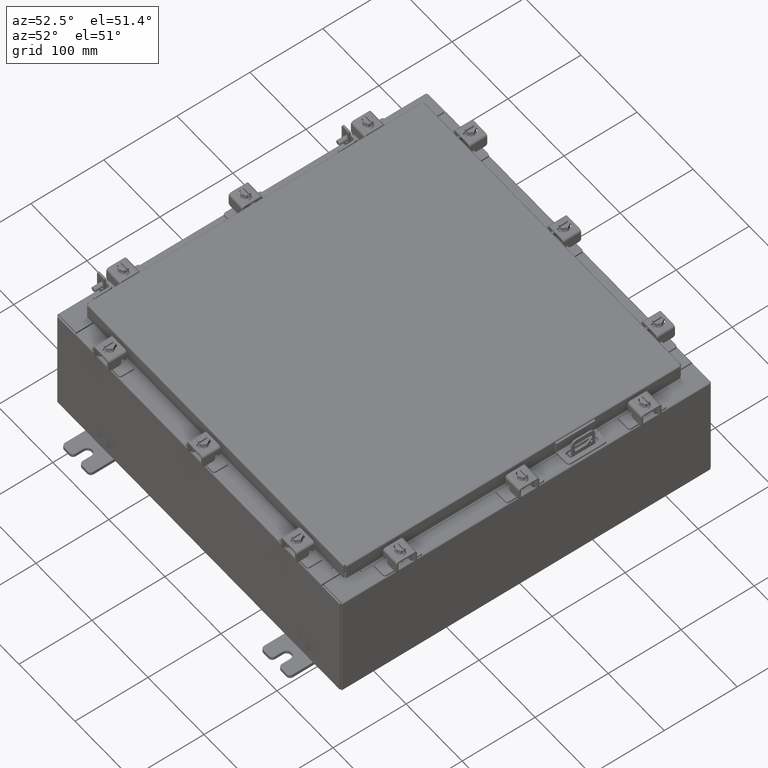
[diagram: clean part render]
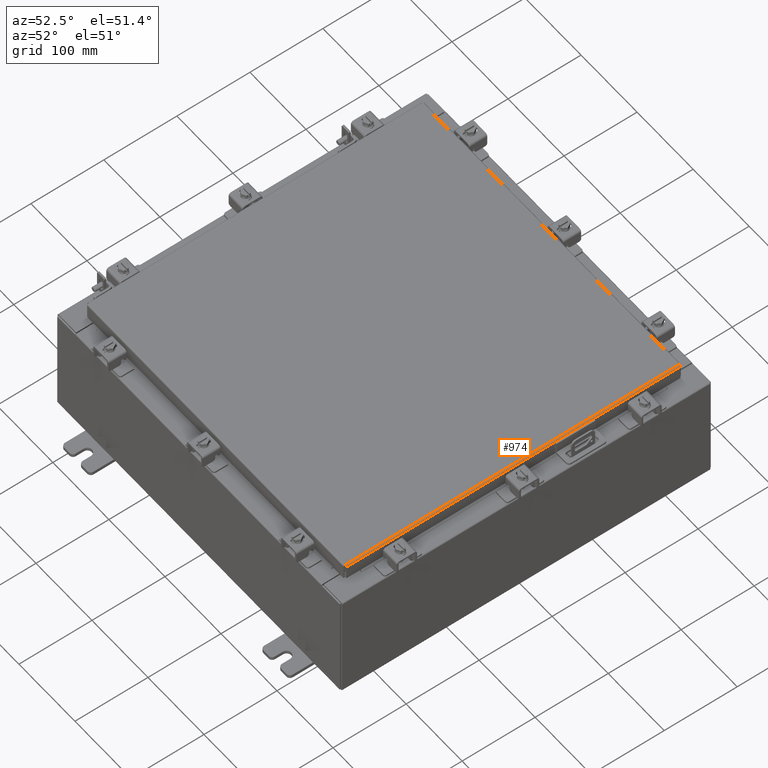
[diagram: same view with one face highlighted and labeled with its STEP entity id]
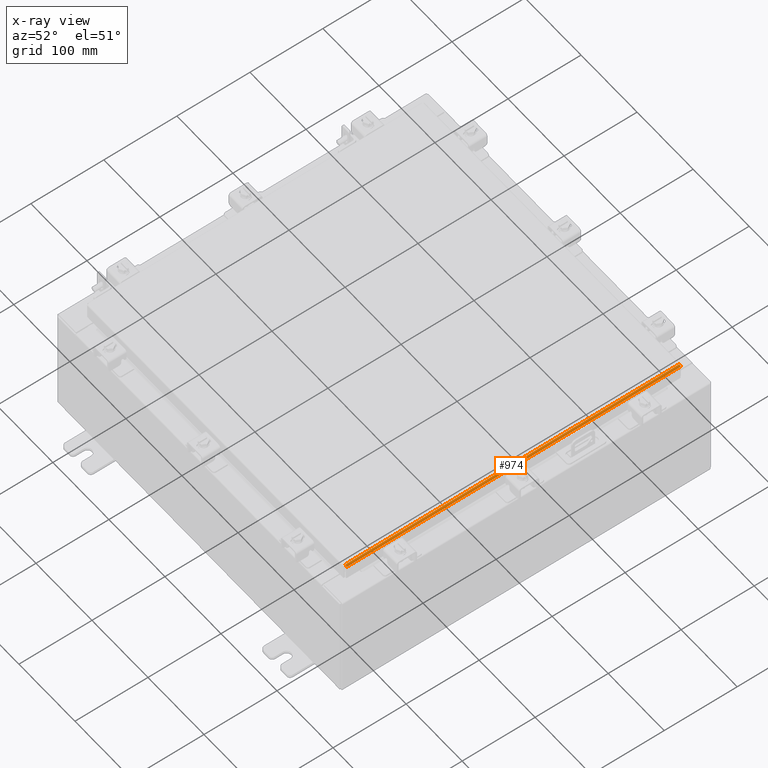
[diagram: x-ray of the same camera — body ghosted, the highlighted face saturated]
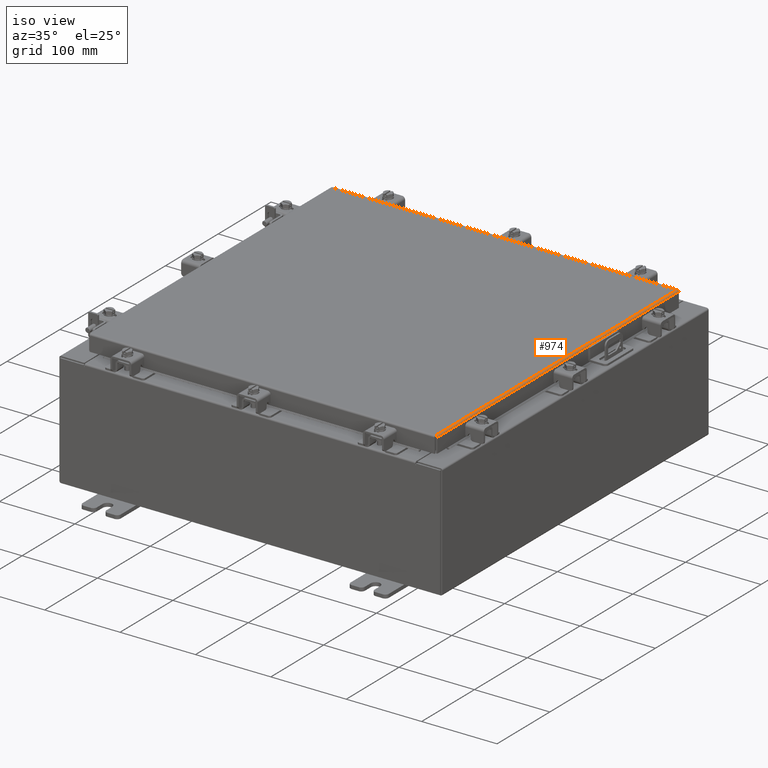
[diagram: same view with one face highlighted and labeled with its STEP entity id]
A machine part, auxiliary view. The second image highlights one B-rep face of the part: STEP entity #974.
The next image is the same camera in x-ray: the body ghosted, the highlighted face saturated — about 0% of this face is hidden behind the body in this view.
A second angle (iso view) of the same face is appended — the face is thin or edge-on in the first view.
In plain terms, the highlighted cylindrical surface (edge-blend (fillet) strip) has radius 2.2276 mm, axis along (-0, -1, -0).
Its self-contained STEP definition (entity closure, byte-faithful):
#211 = CARTESIAN_POINT ( 'NONE',  ( 9.017779903154993400, 9.006204822031353500, -1.701735877889249200E-016 ) ) ;
#298 = CARTESIAN_POINT ( 'NONE',  ( 9.094000000000001200, -5.269035934039632300E-018, -0.08769999999999918100 ) ) ;
#907 = CARTESIAN_POINT ( 'NONE',  ( 9.006300000000001300, -9.006299999999999500, 0.0000000000000000000 ) ) ;
#974 = ADVANCED_FACE ( 'NONE', ( #4499 ), #3944, .T. ) ;
#1452 = DIRECTION ( 'NONE',  ( -0.0000000000000000000, -1.000000000000000000, -0.0000000000000000000 ) ) ;
#1714 = DIRECTION ( 'NONE',  ( -1.693590113897317100E-031, -1.000000000000000000, 6.008022858289562200E-017 ) ) ;
#2205 = VECTOR ( 'NONE', #9069, 39.37007874015748100 ) ;
#2225 = EDGE_CURVE ( 'NONE', #18593, #19341, #6904, .T. ) ;
#3320 = EDGE_CURVE ( 'NONE', #20208, #9558, #11492, .T. ) ;
#3748 = CARTESIAN_POINT ( 'NONE',  ( 9.029255289458310700, 9.006109644062714600, -0.002282596256189017100 ) ) ;
#3944 = CYLINDRICAL_SURFACE ( 'NONE', #12141, 0.08770000000000026400 ) ;
#4379 = CARTESIAN_POINT ( 'NONE',  ( 9.094000000000001200, -9.005253042344913100, -0.07622009684500395700 ) ) ;
#4499 = FACE_OUTER_BOUND ( 'NONE', #18441, .T. ) ;
#5538 = CARTESIAN_POINT ( 'NONE',  ( 9.060195747341802900, 9.005824110156780200, -0.01756921792168066000 ) ) ;
#6904 = LINE ( 'NONE', #298, #11546 ) ;
#7022 = CARTESIAN_POINT ( 'NONE',  ( 9.006300000000001300, 9.006299999999999500, 0.0000000000000000000 ) ) ;
#7276 = CARTESIAN_POINT ( 'NONE',  ( 9.082931066258671700, 9.005538576250847500, -0.04353261542147437300 ) ) ;
#7607 = EDGE_CURVE ( 'NONE', #19341, #20208, #14814, .T. ) ;
#7893 = CARTESIAN_POINT ( 'NONE',  ( 9.076430782078320500, -9.005633754219491700, -0.03380425265819837100 ) ) ;
#8109 = CARTESIAN_POINT ( 'NONE',  ( 9.006300000000001300, -9.006299999999999500, 0.0000000000000000000 ) ) ;
#9016 = CARTESIAN_POINT ( 'NONE',  ( 9.094000000000001200, 9.005253042344913100, -0.07622009684501077100 ) ) ;
#9069 = DIRECTION ( 'NONE',  ( 0.0000000000000000000, 1.000000000000000000, 0.0000000000000000000 ) ) ;
#9558 = VERTEX_POINT ( 'NONE', #7022 ) ;
#9654 = CARTESIAN_POINT ( 'NONE',  ( 9.050467384578528400, -9.005919288125422600, -0.01106893374133114200 ) ) ;
#9767 = CARTESIAN_POINT ( 'NONE',  ( 9.006300000000001300, -9.006299999999999500, -0.08770000000000026400 ) ) ;
#10829 = ORIENTED_EDGE ( 'NONE', *, *, #15268, .F. ) ;
#11380 = CARTESIAN_POINT ( 'NONE',  ( 9.017779903154993400, -9.006204822031355300, -1.696066759738335700E-016 ) ) ;
#11492 = LINE ( 'NONE', #15821, #2205 ) ;
#11546 = VECTOR ( 'NONE', #1714, 39.37007874015748100 ) ;
#11944 = ORIENTED_EDGE ( 'NONE', *, *, #7607, .F. ) ;
#12141 = AXIS2_PLACEMENT_3D ( 'NONE', #9767, #1452, #12546 ) ;
#12440 = CARTESIAN_POINT ( 'NONE',  ( 9.006300000000001300, 9.006299999999999500, 0.0000000000000000000 ) ) ;
#12546 = DIRECTION ( 'NONE',  ( 1.000000000000000000, 0.0000000000000000000, 2.725618009642215600E-015 ) ) ;
#14055 = CARTESIAN_POINT ( 'NONE',  ( 9.094000000000001200, 9.005157864376268900, -0.08769999999999918100 ) ) ;
#14788 = CARTESIAN_POINT ( 'NONE',  ( 9.091717403743809100, -9.005348220313557300, -0.06474471054168821900 ) ) ;
#14814 = B_SPLINE_CURVE_WITH_KNOTS ( 'NONE', 3,
 ( #16526, #4379, #14788, #18298, #7893, #20029, #9654, #21752, #11380, #907 ),
 .UNSPECIFIED., .F., .F.,
 ( 4, 2, 2, 2, 4 ),
 ( 0.0000000000000000000, 0.2500000000000000000, 0.5000000000000000000, 0.7500000000000000000, 1.000000000000000000 ),
 .UNSPECIFIED. ) ;
#15268 = EDGE_CURVE ( 'NONE', #9558, #18593, #18588, .T. ) ;
#15821 = CARTESIAN_POINT ( 'NONE',  ( 9.006300000000001300, -9.006299999999999500, 0.0000000000000000000 ) ) ;
#15923 = CARTESIAN_POINT ( 'NONE',  ( 9.050467384578526600, 9.005919288125422600, -0.01106893374133231800 ) ) ;
#16526 = CARTESIAN_POINT ( 'NONE',  ( 9.094000000000001200, -9.005157864376267100, -0.08769999999999918100 ) ) ;
#17104 = CARTESIAN_POINT ( 'NONE',  ( 9.094000000000001200, -9.005157864376267100, -0.08769999999999918100 ) ) ;
#17680 = CARTESIAN_POINT ( 'NONE',  ( 9.076430782078322300, 9.005633754219490000, -0.03380425265820177800 ) ) ;
#18298 = CARTESIAN_POINT ( 'NONE',  ( 9.082931066258664600, -9.005538576250842200, -0.04353261542147005700 ) ) ;
#18441 = EDGE_LOOP ( 'NONE', ( #20177, #11944, #20699, #10829 ) ) ;
#18588 = B_SPLINE_CURVE_WITH_KNOTS ( 'NONE', 3,
 ( #12440, #211, #3748, #15923, #5538, #17680, #7276, #19434, #9016, #21140 ),
 .UNSPECIFIED., .F., .F.,
 ( 4, 2, 2, 2, 4 ),
 ( 0.0000000000000000000, 0.2500000000000000000, 0.5000000000000000000, 0.7500000000000000000, 1.000000000000000000 ),
 .UNSPECIFIED. ) ;
#18593 = VERTEX_POINT ( 'NONE', #14055 ) ;
#19341 = VERTEX_POINT ( 'NONE', #17104 ) ;
#19434 = CARTESIAN_POINT ( 'NONE',  ( 9.091717403743812700, 9.005348220313560900, -0.06474471054169418600 ) ) ;
#20029 = CARTESIAN_POINT ( 'NONE',  ( 9.060195747341801100, -9.005824110156778400, -0.01756921792167882200 ) ) ;
#20177 = ORIENTED_EDGE ( 'NONE', *, *, #3320, .F. ) ;
#20208 = VERTEX_POINT ( 'NONE', #8109 ) ;
#20699 = ORIENTED_EDGE ( 'NONE', *, *, #2225, .F. ) ;
#21140 = CARTESIAN_POINT ( 'NONE',  ( 9.094000000000001200, 9.005157864376268900, -0.08769999999999918100 ) ) ;
#21752 = CARTESIAN_POINT ( 'NONE',  ( 9.029255289458308900, -9.006109644062712900, -0.002282596256188758200 ) ) ;